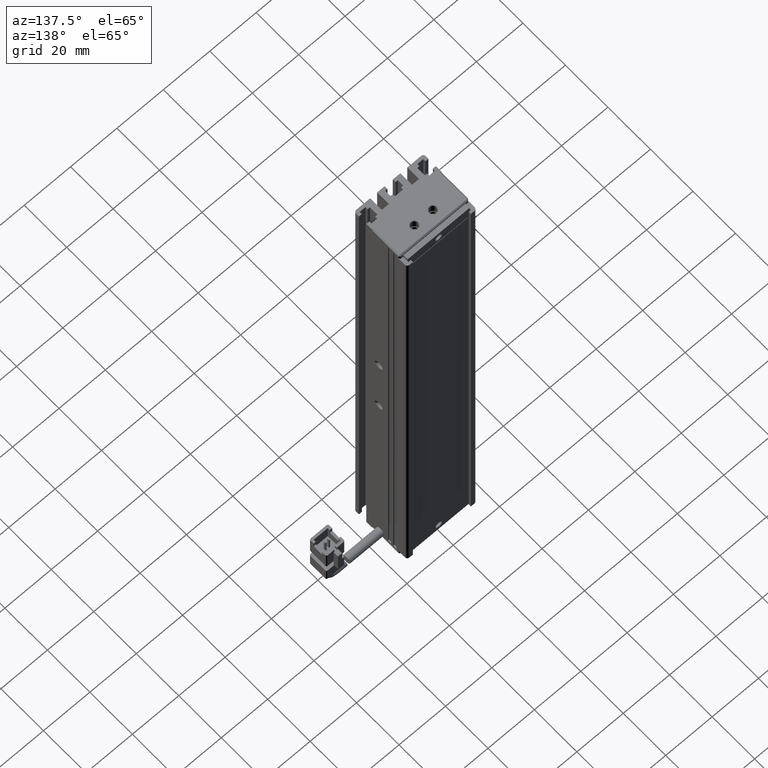
[diagram: clean part render]
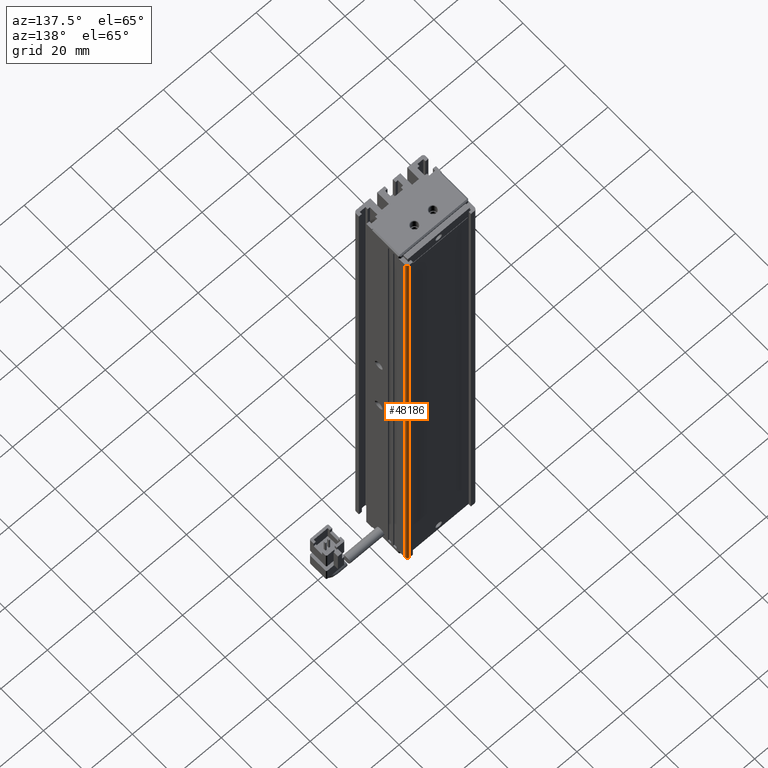
[diagram: same view with one face highlighted and labeled with its STEP entity id]
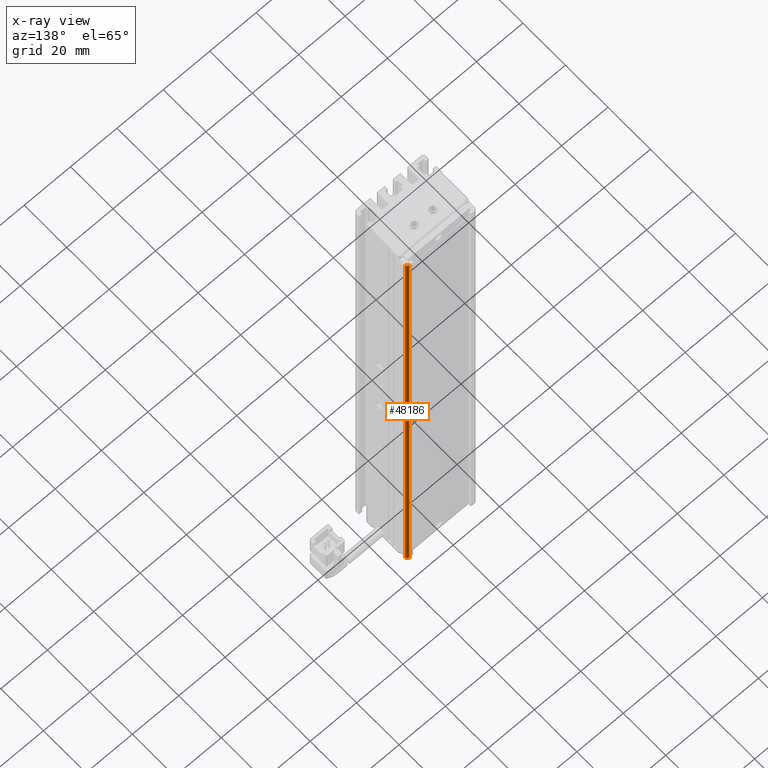
[diagram: x-ray of the same camera — body ghosted, the highlighted face saturated]
A machine part, auxiliary view. The second image highlights one B-rep face of the part: STEP entity #48186.
The next image is the same camera in x-ray: the body ghosted, the highlighted face saturated — about 0% of this face is hidden behind the body in this view.
In plain terms, the highlighted cylindrical surface (edge-blend (fillet) strip) has radius 1 mm, axis along (-0, -0, -1).
Its self-contained STEP definition (entity closure, byte-faithful):
#366 = ORIENTED_EDGE ( 'NONE', *, *, #5774, .T. ) ;
#485 = CARTESIAN_POINT ( 'NONE',  ( 54.92537974683542500, 35.69594479660387500, -5.000000000000004400 ) ) ;
#4217 = ORIENTED_EDGE ( 'NONE', *, *, #42204, .T. ) ;
#4799 = CYLINDRICAL_SURFACE ( 'NONE', #13657, 1.000000000000000900 ) ;
#5741 = DIRECTION ( 'NONE',  ( -1.000000000000000000, 0.0000000000000000000, 0.0000000000000000000 ) ) ;
#5774 = EDGE_CURVE ( 'NONE', #39093, #26547, #22367, .T. ) ;
#8115 = DIRECTION ( 'NONE',  ( -0.0000000000000000000, -0.0000000000000000000, -1.000000000000000000 ) ) ;
#9393 = DIRECTION ( 'NONE',  ( -0.0000000000000000000, -0.0000000000000000000, -1.000000000000000000 ) ) ;
#9768 = CARTESIAN_POINT ( 'NONE',  ( 54.92537974683542500, 34.69594479660387500, -225.0000000000000000 ) ) ;
#13198 = CARTESIAN_POINT ( 'NONE',  ( 54.92537974683542500, 34.69594479660387500, -3.000000000000002700 ) ) ;
#13566 = DIRECTION ( 'NONE',  ( -1.000000000000000000, 0.0000000000000000000, 0.0000000000000000000 ) ) ;
#13657 = AXIS2_PLACEMENT_3D ( 'NONE', #13198, #9393, #5741 ) ;
#15418 = ORIENTED_EDGE ( 'NONE', *, *, #27274, .T. ) ;
#19045 = CIRCLE ( 'NONE', #34282, 1.000000000000000900 ) ;
#19103 = CARTESIAN_POINT ( 'NONE',  ( 54.92537974683542500, 35.69594479660387500, -225.0000000000000000 ) ) ;
#19287 = DIRECTION ( 'NONE',  ( -0.0000000000000000000, -0.0000000000000000000, -1.000000000000000000 ) ) ;
#19993 = CARTESIAN_POINT ( 'NONE',  ( 55.92537974683542500, 34.69594479660387500, -3.000000000000002700 ) ) ;
#22367 = LINE ( 'NONE', #19993, #41452 ) ;
#23330 = ORIENTED_EDGE ( 'NONE', *, *, #37422, .T. ) ;
#26547 = VERTEX_POINT ( 'NONE', #45306 ) ;
#26667 = VERTEX_POINT ( 'NONE', #485 ) ;
#26686 = AXIS2_PLACEMENT_3D ( 'NONE', #9768, #36408, #13566 ) ;
#27274 = EDGE_CURVE ( 'NONE', #26667, #39093, #19045, .T. ) ;
#27850 = VECTOR ( 'NONE', #43311, 1000.000000000000000 ) ;
#28022 = CIRCLE ( 'NONE', #26686, 1.000000000000000900 ) ;
#30902 = CARTESIAN_POINT ( 'NONE',  ( 54.92537974683542500, 34.69594479660387500, -5.000000000000004400 ) ) ;
#34282 = AXIS2_PLACEMENT_3D ( 'NONE', #30902, #8115, #34812 ) ;
#34812 = DIRECTION ( 'NONE',  ( -1.000000000000000000, 0.0000000000000000000, 0.0000000000000000000 ) ) ;
#35532 = CARTESIAN_POINT ( 'NONE',  ( 54.92537974683541800, 35.69594479660387500, -3.000000000000002700 ) ) ;
#36408 = DIRECTION ( 'NONE',  ( 0.0000000000000000000, 0.0000000000000000000, 1.000000000000000000 ) ) ;
#37422 = EDGE_CURVE ( 'NONE', #26547, #39571, #28022, .T. ) ;
#38012 = LINE ( 'NONE', #35532, #27850 ) ;
#38811 = FACE_OUTER_BOUND ( 'NONE', #48833, .T. ) ;
#38950 = CARTESIAN_POINT ( 'NONE',  ( 55.92537974683542500, 34.69594479660387500, -5.000000000000004400 ) ) ;
#39093 = VERTEX_POINT ( 'NONE', #38950 ) ;
#39571 = VERTEX_POINT ( 'NONE', #19103 ) ;
#41452 = VECTOR ( 'NONE', #19287, 1000.000000000000000 ) ;
#42204 = EDGE_CURVE ( 'NONE', #39571, #26667, #38012, .T. ) ;
#43311 = DIRECTION ( 'NONE',  ( 0.0000000000000000000, 0.0000000000000000000, 1.000000000000000000 ) ) ;
#45306 = CARTESIAN_POINT ( 'NONE',  ( 55.92537974683542500, 34.69594479660387500, -225.0000000000000000 ) ) ;
#48186 = ADVANCED_FACE ( 'NONE', ( #38811 ), #4799, .T. ) ;
#48833 = EDGE_LOOP ( 'NONE', ( #366, #23330, #4217, #15418 ) ) ;